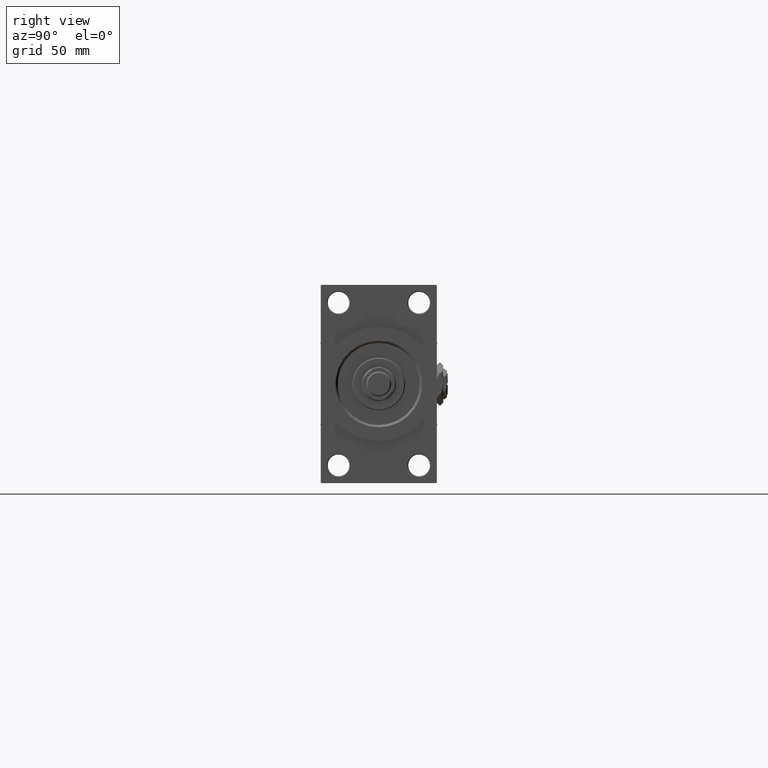
[diagram: clean part render]
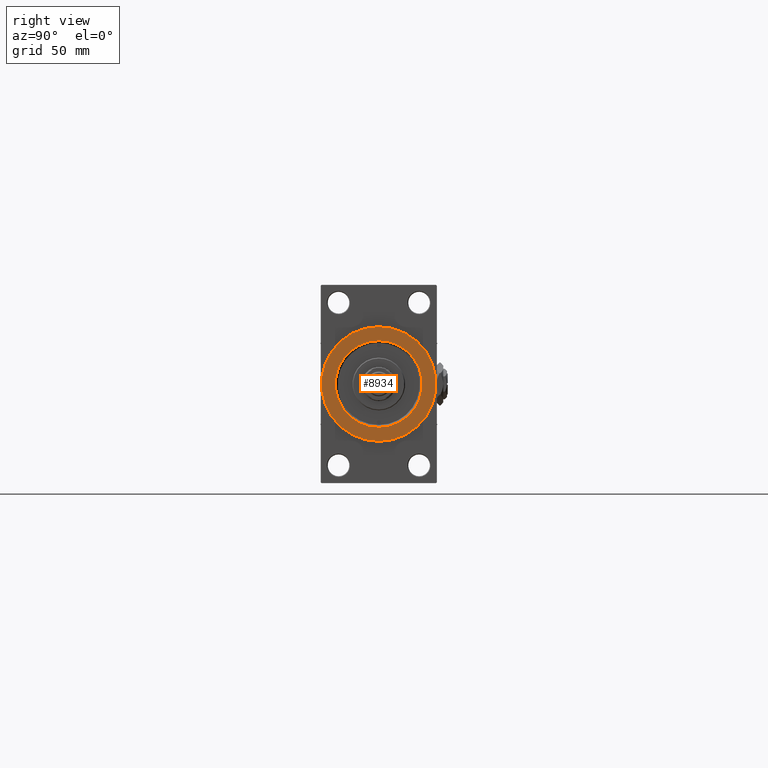
[diagram: same view with one face highlighted and labeled with its STEP entity id]
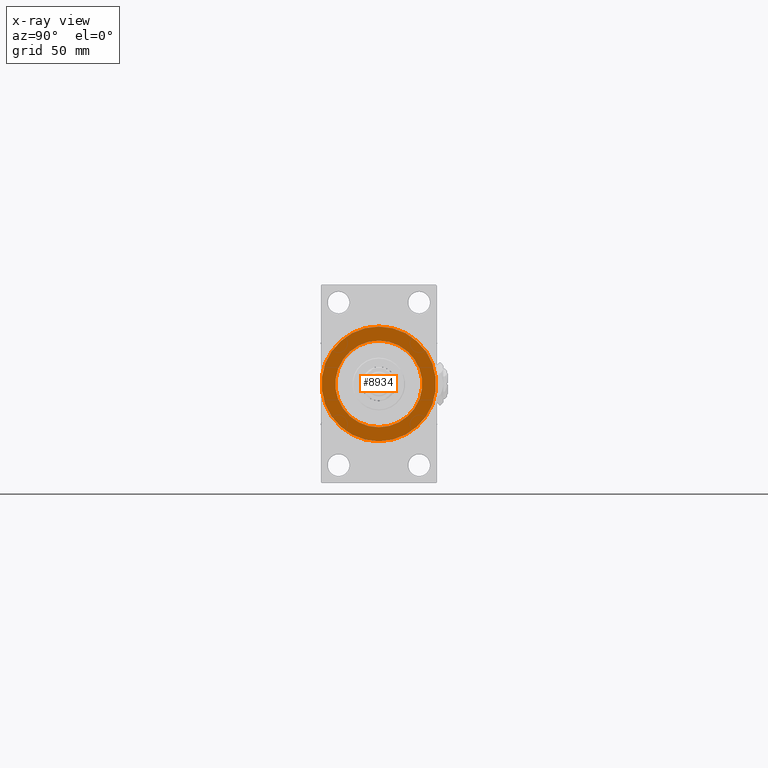
[diagram: x-ray of the same camera — body ghosted, the highlighted face saturated]
A machine part, right view. The second image highlights one B-rep face of the part: STEP entity #8934.
The next image is the same camera in x-ray: the body ghosted, the highlighted face saturated — about 0% of this face is hidden behind the body in this view.
In plain terms, the highlighted planar face has unit normal (1, 0, 0).
Its self-contained STEP definition (entity closure, byte-faithful):
#627 = CARTESIAN_POINT ( 'NONE',  ( 383.9999999999999432, 0.000000000000000000, 0.000000000000000000 ) ) ;
#1868 = CARTESIAN_POINT ( 'NONE',  ( 383.9999999999999432, 0.000000000000000000, 0.000000000000000000 ) ) ;
#4618 = ORIENTED_EDGE ( 'NONE', *, *, #11854, .T. ) ;
#8934 = ADVANCED_FACE ( 'NONE', ( #38793, #31957 ), #46610, .T. ) ;
#9051 = EDGE_CURVE ( 'NONE', #10792, #43635, #38017, .T. ) ;
#9961 = DIRECTION ( 'NONE',  ( 0.000000000000000000, 0.000000000000000000, -1.000000000000000000 ) ) ;
#10792 = VERTEX_POINT ( 'NONE', #21439 ) ;
#11331 = AXIS2_PLACEMENT_3D ( 'NONE', #627, #12249, #11998 ) ;
#11854 = EDGE_CURVE ( 'NONE', #48696, #40449, #23546, .T. ) ;
#11998 = DIRECTION ( 'NONE',  ( 0.000000000000000000, 0.000000000000000000, -1.000000000000000000 ) ) ;
#12249 = DIRECTION ( 'NONE',  ( 1.000000000000000000, 0.000000000000000000, 0.000000000000000000 ) ) ;
#12630 = EDGE_CURVE ( 'NONE', #40449, #48696, #46200, .T. ) ;
#13746 = DIRECTION ( 'NONE',  ( -1.000000000000000000, -0.000000000000000000, -0.000000000000000000 ) ) ;
#16452 = ORIENTED_EDGE ( 'NONE', *, *, #9051, .T. ) ;
#17533 = AXIS2_PLACEMENT_3D ( 'NONE', #31884, #32623, #40469 ) ;
#20327 = AXIS2_PLACEMENT_3D ( 'NONE', #42635, #31259, #38599 ) ;
#21439 = CARTESIAN_POINT ( 'NONE',  ( 383.9999999999999432, 3.429011037612599137E-15, 28.00000000000008171 ) ) ;
#21487 = EDGE_LOOP ( 'NONE', ( #27704, #4618 ) ) ;
#23078 = DIRECTION ( 'NONE',  ( 0.000000000000000000, 0.000000000000000000, -1.000000000000000000 ) ) ;
#23546 = CIRCLE ( 'NONE', #20327, 37.00000000000000000 ) ;
#25897 = AXIS2_PLACEMENT_3D ( 'NONE', #1868, #13746, #9961 ) ;
#27704 = ORIENTED_EDGE ( 'NONE', *, *, #12630, .T. ) ;
#28594 = ORIENTED_EDGE ( 'NONE', *, *, #35294, .T. ) ;
#30023 = CARTESIAN_POINT ( 'NONE',  ( 383.9999999999999432, 4.531193156845206793E-15, -37.00000000000000000 ) ) ;
#31138 = DIRECTION ( 'NONE',  ( 1.000000000000000000, 0.000000000000000000, 0.000000000000000000 ) ) ;
#31259 = DIRECTION ( 'NONE',  ( 1.000000000000000000, 0.000000000000000000, 0.000000000000000000 ) ) ;
#31884 = CARTESIAN_POINT ( 'NONE',  ( 383.9999999999999432, 0.000000000000000000, 0.000000000000000000 ) ) ;
#31957 = FACE_OUTER_BOUND ( 'NONE', #21487, .T. ) ;
#32623 = DIRECTION ( 'NONE',  ( -1.000000000000000000, -0.000000000000000000, -0.000000000000000000 ) ) ;
#35176 = CARTESIAN_POINT ( 'NONE',  ( 383.9999999999999432, 0.000000000000000000, 0.000000000000000000 ) ) ;
#35294 = EDGE_CURVE ( 'NONE', #43635, #10792, #41755, .T. ) ;
#38017 = CIRCLE ( 'NONE', #25897, 28.00000000000008171 ) ;
#38599 = DIRECTION ( 'NONE',  ( 0.000000000000000000, 0.000000000000000000, -1.000000000000000000 ) ) ;
#38793 = FACE_BOUND ( 'NONE', #46509, .T. ) ;
#40449 = VERTEX_POINT ( 'NONE', #48400 ) ;
#40469 = DIRECTION ( 'NONE',  ( 0.000000000000000000, 0.000000000000000000, -1.000000000000000000 ) ) ;
#41755 = CIRCLE ( 'NONE', #17533, 28.00000000000008171 ) ;
#42168 = AXIS2_PLACEMENT_3D ( 'NONE', #35176, #31138, #23078 ) ;
#42635 = CARTESIAN_POINT ( 'NONE',  ( 383.9999999999999432, 0.000000000000000000, 0.000000000000000000 ) ) ;
#43635 = VERTEX_POINT ( 'NONE', #44388 ) ;
#44388 = CARTESIAN_POINT ( 'NONE',  ( 383.9999999999999432, 0.000000000000000000, -28.00000000000008171 ) ) ;
#46200 = CIRCLE ( 'NONE', #42168, 37.00000000000000000 ) ;
#46509 = EDGE_LOOP ( 'NONE', ( #28594, #16452 ) ) ;
#46610 = PLANE ( 'NONE',  #11331 ) ;
#48400 = CARTESIAN_POINT ( 'NONE',  ( 383.9999999999999432, 0.000000000000000000, 37.00000000000000000 ) ) ;
#48696 = VERTEX_POINT ( 'NONE', #30023 ) ;